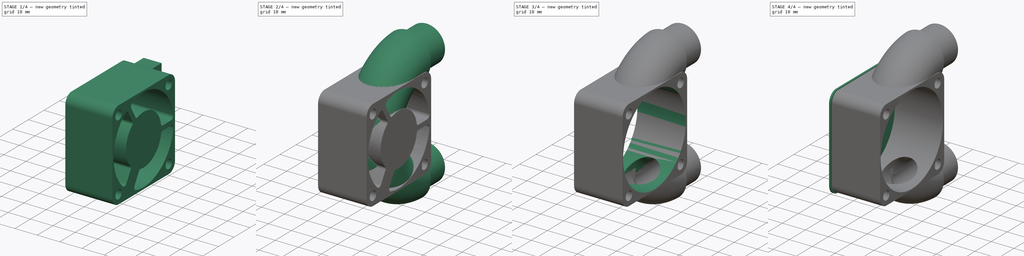
[diagram: build sequence overview — one tinted view per stage of 4, left to right]
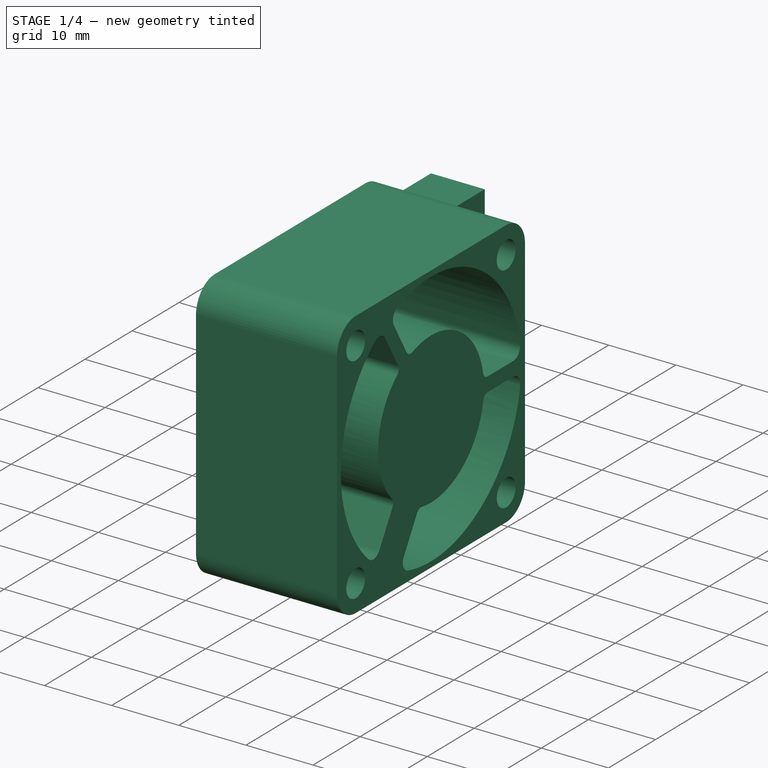
[diagram: stage 1 of 4 — iso view after this stage's code; geometry added in this stage tinted green]
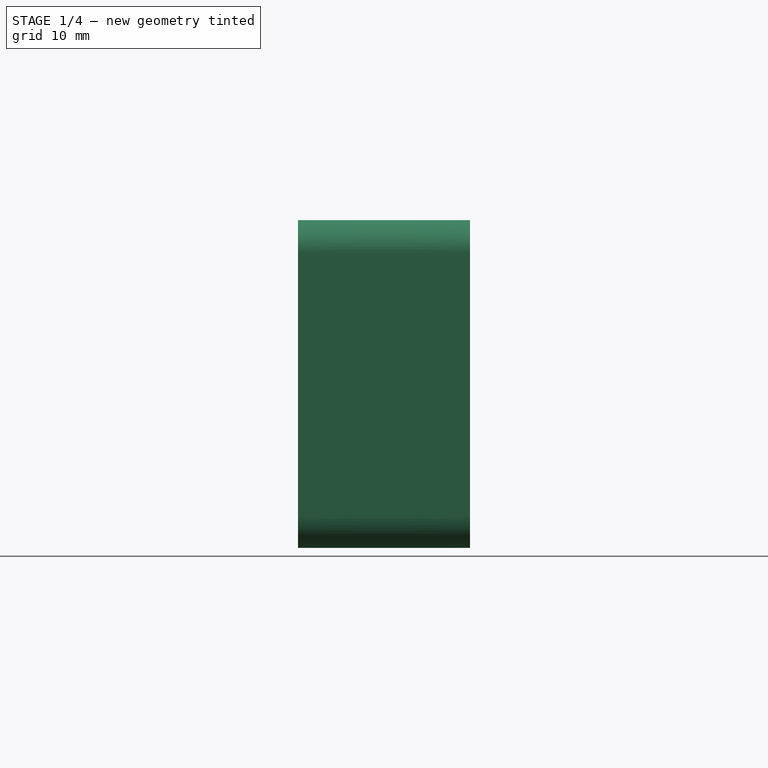
[diagram: stage 1 of 4 — front view after this stage's code; geometry added in this stage tinted green]
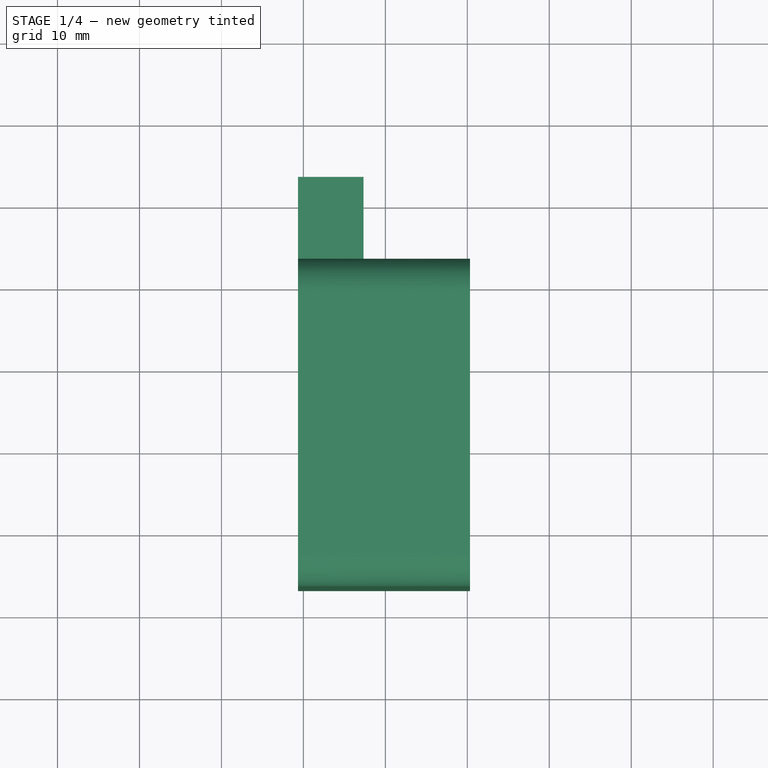
[diagram: stage 1 of 4 — top view after this stage's code; geometry added in this stage tinted green]
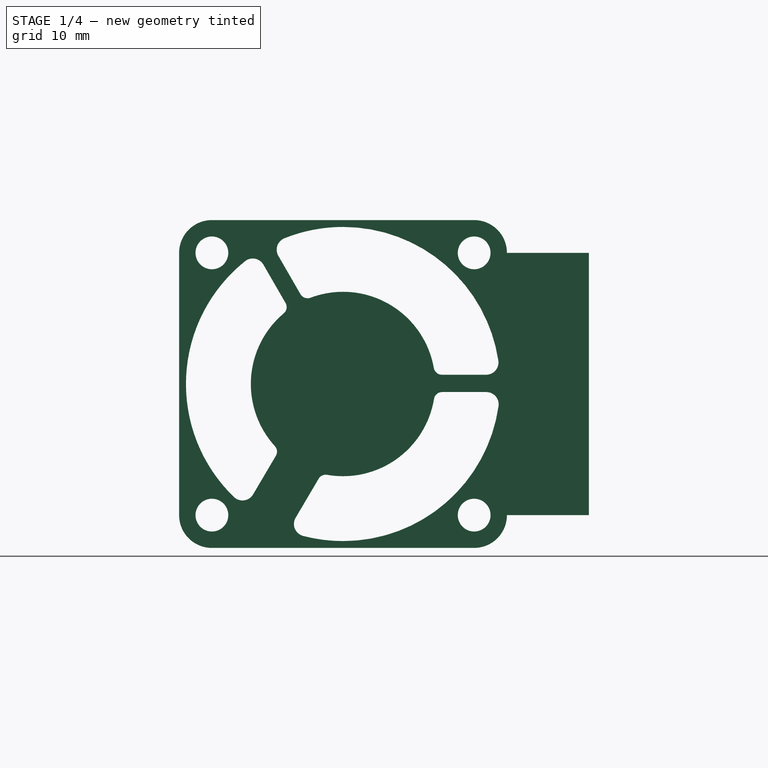
[diagram: stage 1 of 4 — right view after this stage's code; geometry added in this stage tinted green]
FCSTD DOCUMENT  (FreeCAD 0.20R29177 (Git))
Label: AT_006a_ductfan
License: All rights reserved
LicenseURL: http://en.wikipedia.org/wiki/All_rights_reserved
objects: Sketcher::SketchObject×7, PartDesign::Pad×5, PartDesign::Pocket×3, PartDesign::SubShapeBinder×1, PartDesign::AdditivePipe×1, PartDesign::SubtractivePipe×1, PartDesign::Hole×1, PartDesign::Body×1
note: 31 computed .brp shape members not serialized (recipe doc carries the construction recipe); baked Part::Feature solids carry a one-line shape summary decoded from their .brp

FEATURE [PartDesign::SubShapeBinder] Binder
  BindCopyOnChange = 0
  BindMode = 2
  ClaimChildren = false
  Context = -> Body [Binder.]
  Fuse = false
  MakeFace = true
  OffsetFill = false
  OffsetIntersection = false
  OffsetJoinType = 0
  OffsetOpenResult = false
  PartialLoad = false
  Relative = true
  _Version = 2
FEATURE [PartDesign::Pad] Pad
  Direction = (-1600,3.68e-14,-3.553e-13)
  Length = 21
  Length2 = 10
  Profile = -> Binder [Face2]
  Type = 0
FEATURE [PartDesign::Pad] Pad001
  BaseFeature = -> Pad
  Direction = (0,1,3e-16)
  Length = 10
  Length2 = 10
  Profile = -> Pad [Face10]
  Type = 0
FEATURE [PartDesign::Pocket] Pocket
  BaseFeature = -> Pad001
  Direction = (-1,0,-2e-16)
  Length = 13
  Length2 = 5
  Profile = -> Pad001 [Face14]
  Type = 0
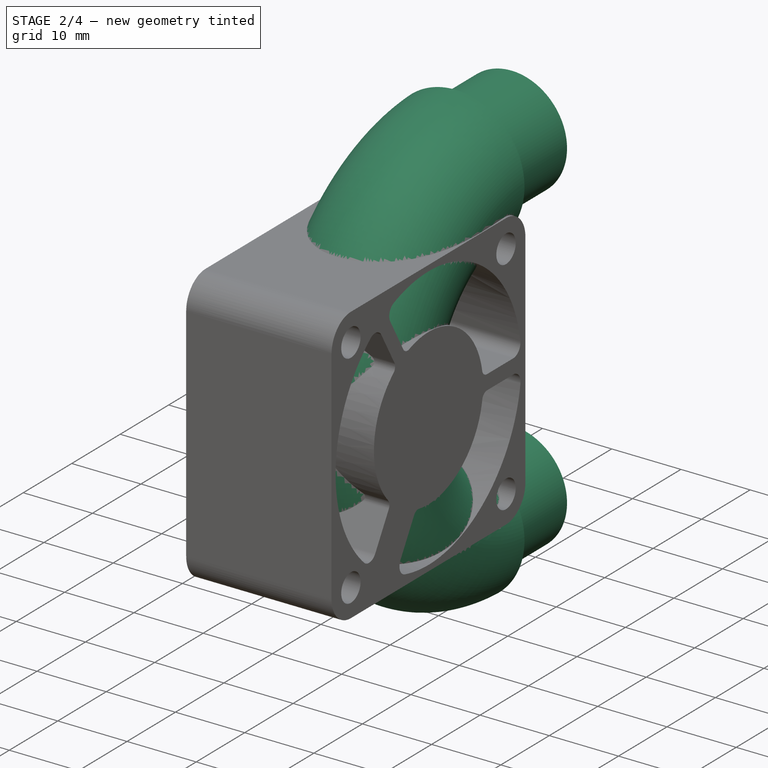
[diagram: stage 2 of 4 — iso view after this stage's code; geometry added in this stage tinted green]
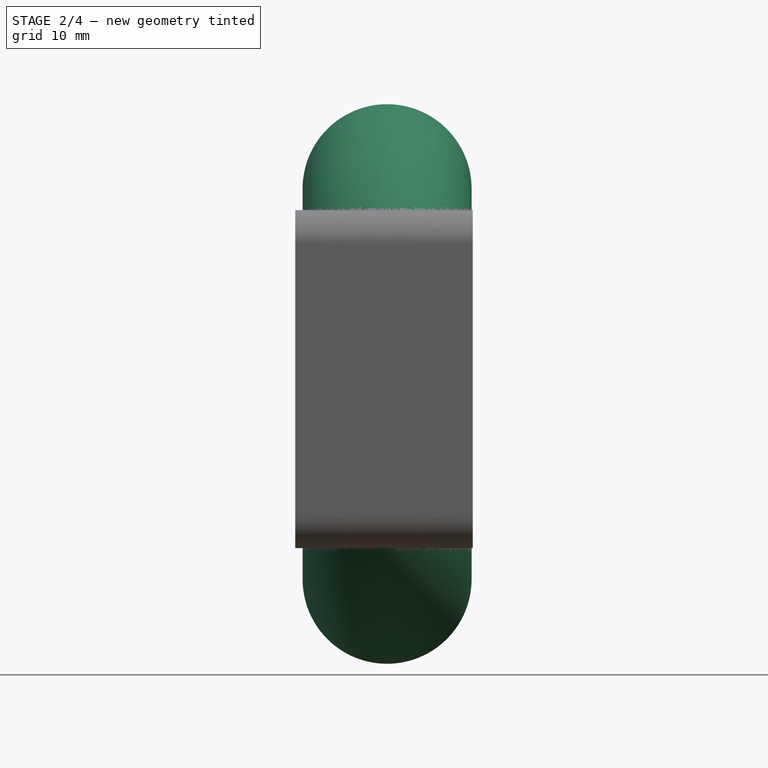
[diagram: stage 2 of 4 — front view after this stage's code; geometry added in this stage tinted green]
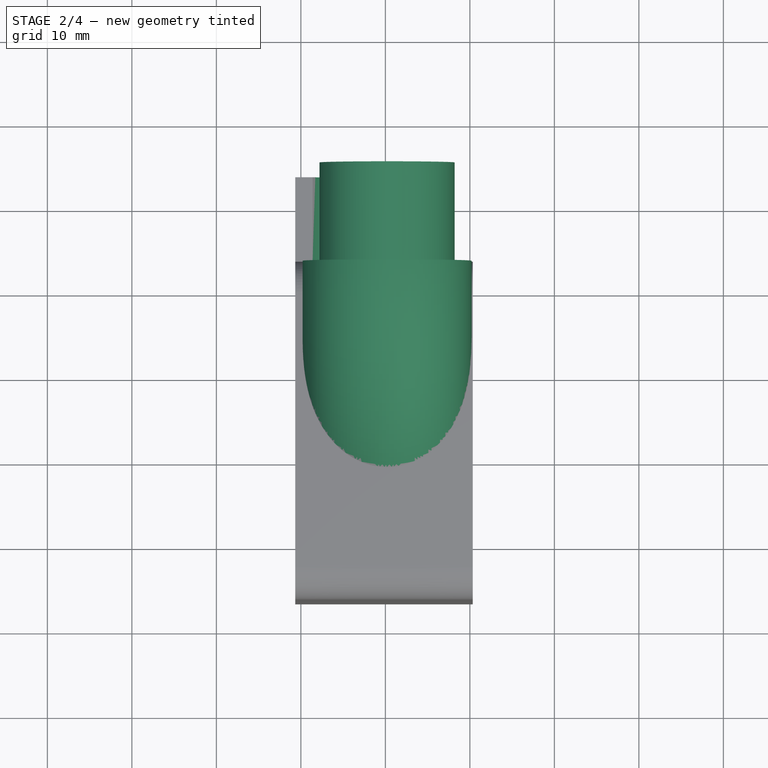
[diagram: stage 2 of 4 — top view after this stage's code; geometry added in this stage tinted green]
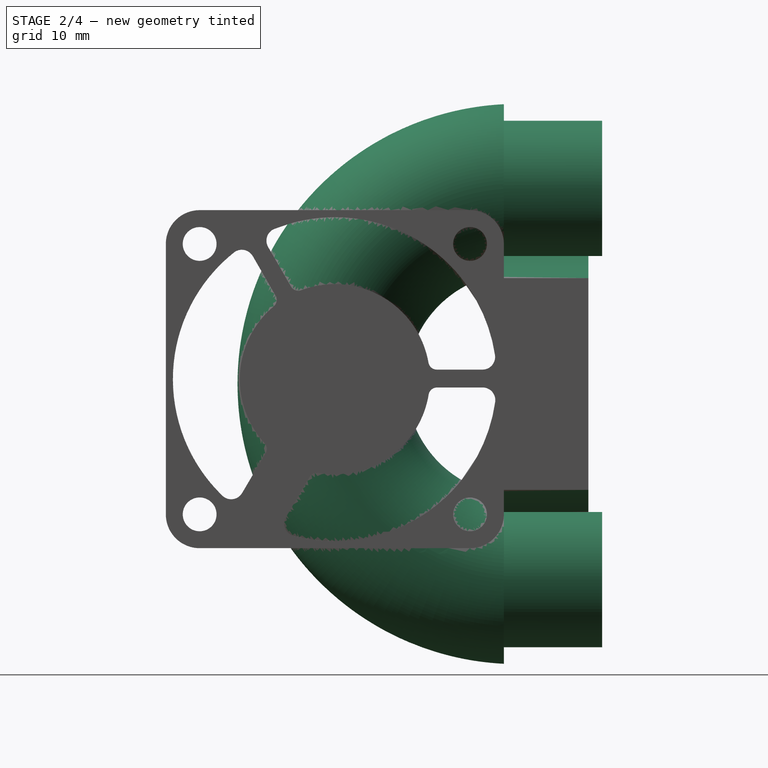
[diagram: stage 2 of 4 — right view after this stage's code; geometry added in this stage tinted green]
FEATURE [Sketcher::SketchObject] Sketch
  ExternalGeometry = -> [Binder]
  FullyConstrained = true
  MapMode = 5
  Placement = pos=(17.3359,-4e-16,3.8e-15) rot=(0.57735,0.57735,0.57735;2.0944rad)
  Support = -> [Pocket]
  sketch-geometry (1):
    g0: ArcOfCircle CenterX=4.8 CenterY=5.95 CenterZ=0 NormalX=0 NormalY=0 NormalZ=1 AngleXU=0 Radius=23.15 StartAngle=1.5708 EndAngle=4.71239
  constraints (3):
    c: Symmetric(g-3,g-3,g0)
    c: Symmetric(g-4,g-4,g0)
    c: Perpendicular(g0,g-3)
FEATURE [PartDesign::AdditivePipe] AdditivePipe
  AuxilleryCurvelinear = true
  AuxillerySpineTangent = false
  BaseFeature = -> Pocket
  Binormal = (0,0,0)
  Mode = 0
  Profile = -> Binder [Face1]
  Spine = -> Sketch
  SpineTangent = false
  Transformation = 0
  Transition = 0
FEATURE [Sketcher::SketchObject] Sketch001
  ExternalGeometry = -> [AdditivePipe]
  FullyConstrained = true
  MapMode = 5
  Placement = pos=(-2.1e-15,4.8,-4.7e-15) rot=(0,0.707107,0.707107;3.14159rad)
  Support = -> [AdditivePipe]
  sketch-geometry (4):
    g0: Circle CenterX=-20.2 CenterY=29.1 CenterZ=0 NormalX=0 NormalY=0 NormalZ=1 AngleXU=0 Radius=8
    g1: Circle CenterX=-20.2 CenterY=-17.2 CenterZ=0 NormalX=0 NormalY=0 NormalZ=1 AngleXU=0 Radius=8
    g2: Circle CenterX=-20.2 CenterY=29.1 CenterZ=0 NormalX=0 NormalY=0 NormalZ=1 AngleXU=0 Radius=6.5
    g3: Circle CenterX=-20.2 CenterY=-17.2 CenterZ=0 NormalX=0 NormalY=0 NormalZ=1 AngleXU=0 Radius=6.5
  constraints (8):
    c: Coincident(g0,g-4)
    c: Coincident(g1,g-3)
    c: Coincident(g2,g0)
    c: Coincident(g3,g1)
    c: Equal(g0,g-4)
    c: Equal(g1,g-3)
    c: Equal(g2,g3)
    c: Diameter(g2) = 13
FEATURE [PartDesign::Pad] Pad002
  BaseFeature = -> AdditivePipe
  Direction = (-4e-16,1,-7e-16)
  Length = 10
  Length2 = 10
  Midplane = true
  Profile = -> Sketch001
  ReferenceAxis = -> Sketch001 [N_Axis]
  Type = 4
FEATURE [Sketcher::SketchObject] Sketch002
  ExternalGeometry = -> [Pad002]
  FullyConstrained = true
  MapMode = 5
  Placement = pos=(3e-16,13.166,3.6e-15) rot=(0,0.707107,0.707107;3.14159rad)
  Support = -> [Pad002]
  sketch-geometry (4):
    g0: Circle CenterX=-20.2 CenterY=29.1 CenterZ=0 NormalX=0 NormalY=0 NormalZ=1 AngleXU=0 Radius=8
    g1: Circle CenterX=-20.2 CenterY=-17.2 CenterZ=0 NormalX=0 NormalY=0 NormalZ=1 AngleXU=0 Radius=8
    g2: Circle CenterX=-20.2 CenterY=29.1 CenterZ=0 NormalX=0 NormalY=0 NormalZ=1 AngleXU=0 Radius=11
    g3: Circle CenterX=-20.2 CenterY=-17.2 CenterZ=0 NormalX=0 NormalY=0 NormalZ=1 AngleXU=0 Radius=11
  constraints (8):
    c: Coincident(g0,g-3)
    c: Coincident(g1,g-4)
    c: Coincident(g2,g0)
    c: Coincident(g3,g1)
    c: Equal(g2,g3)
    c: Equal(g0,g1)
    c: Diameter(g1) = 16
    c: Diameter(g3) = 22
FEATURE [PartDesign::Pocket] Pocket001
  BaseFeature = -> Pad002
  Direction = (0,-1,-2e-16)
  Length = 10
  Length2 = 5
  Profile = -> Sketch002
  ReferenceAxis = -> Sketch002 [N_Axis]
  Type = 0
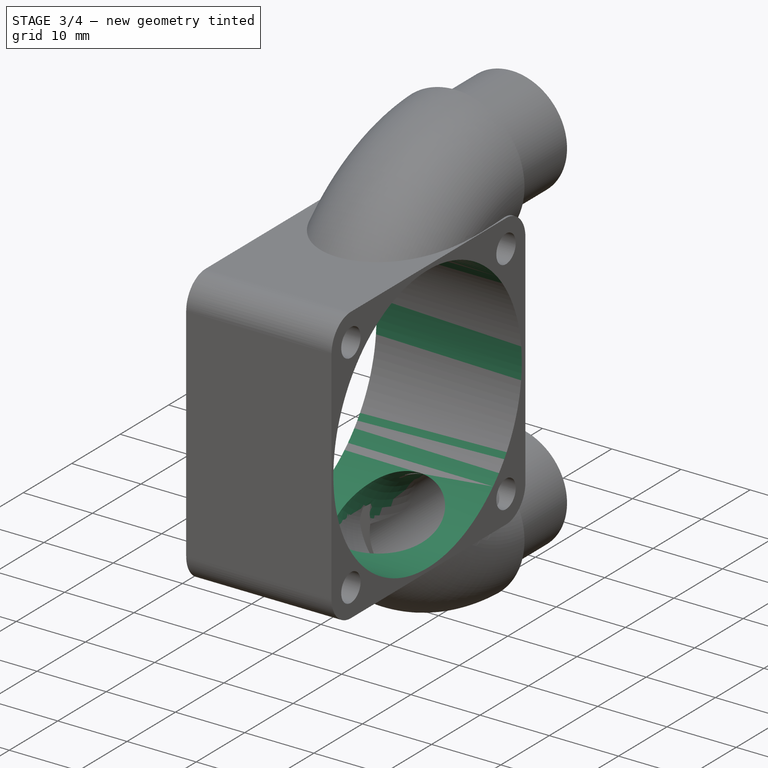
[diagram: stage 3 of 4 — iso view after this stage's code; geometry added in this stage tinted green]
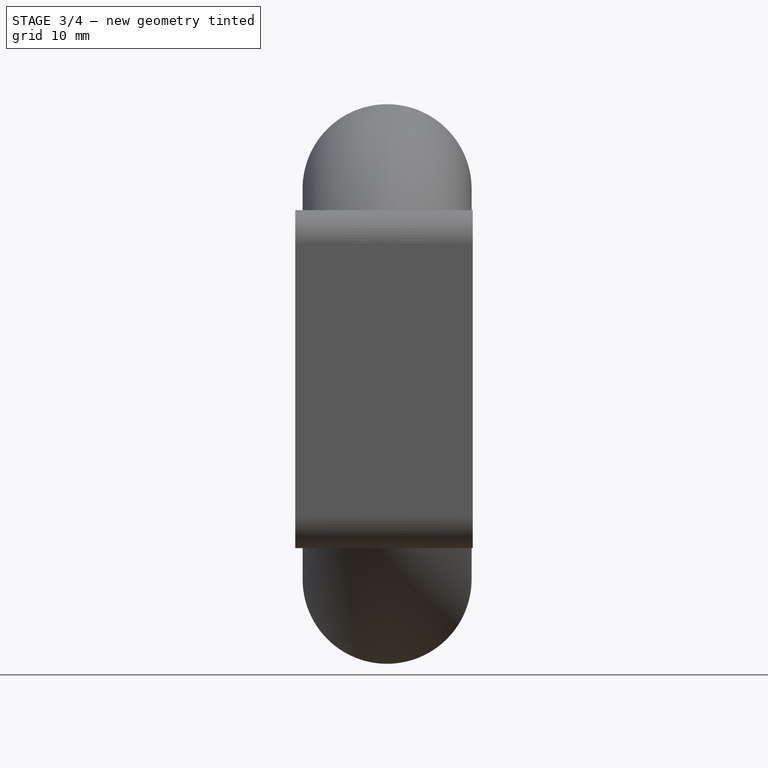
[diagram: stage 3 of 4 — front view after this stage's code; geometry added in this stage tinted green]
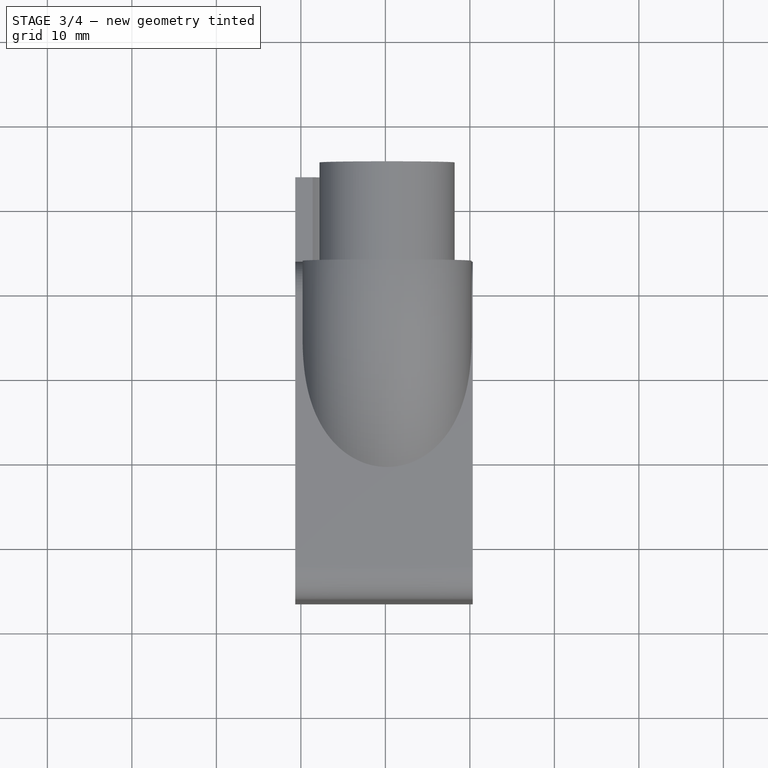
[diagram: stage 3 of 4 — top view after this stage's code; geometry added in this stage tinted green]
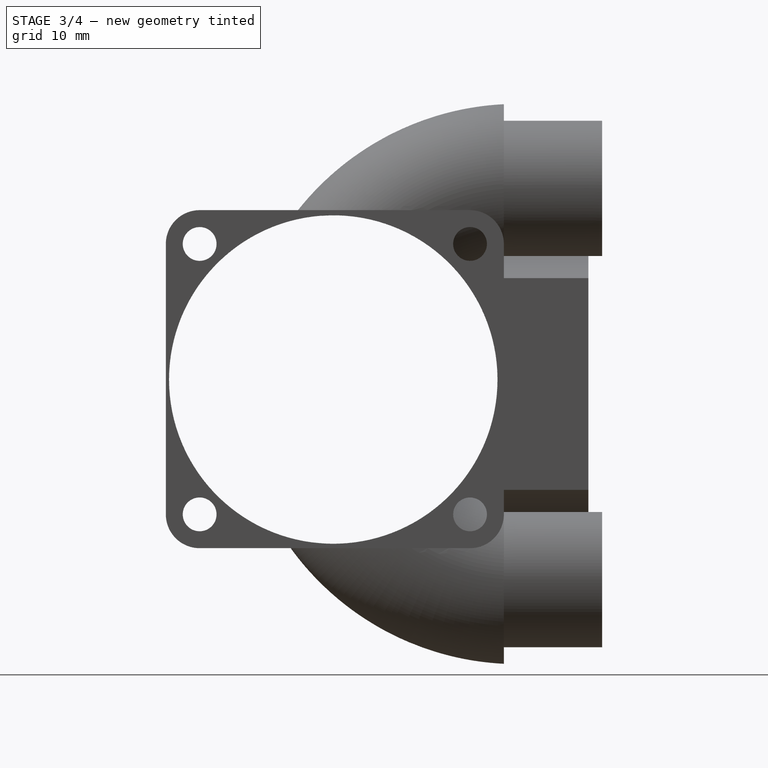
[diagram: stage 3 of 4 — right view after this stage's code; geometry added in this stage tinted green]
FEATURE [Sketcher::SketchObject] Sketch003
  ExternalGeometry = -> [Pocket001]
  FullyConstrained = true
  MapMode = 5
  Placement = pos=(0,3.16599,7e-16) rot=(0,0.707107,0.707107;3.14159rad)
  Support = -> [Pocket001]
  sketch-geometry (1):
    g0: Circle CenterX=-20.2 CenterY=-17.2 CenterZ=0 NormalX=0 NormalY=0 NormalZ=1 AngleXU=0 Radius=6.5
  constraints (2):
    c: Coincident(g0,g-3)
    c: Diameter(g0) = 13
FEATURE [Sketcher::SketchObject] Sketch004
  ExternalGeometry = -> [Pocket001]
  FullyConstrained = false
  MapMode = 5
  Placement = pos=(9.33588,-2e-16,2.1e-15) rot=(-0.57735,0.57735,0.57735;4.18879rad)
  Support = -> [Pocket001]
  sketch-geometry (1):
    g0: Circle CenterX=17.0211 CenterY=6.48015 CenterZ=0 NormalX=0 NormalY=0 NormalZ=1 AngleXU=0 Radius=19.4361
FEATURE [PartDesign::Pocket] Pocket002
  BaseFeature = -> Pocket001
  Direction = (1,1e-16,1e-16)
  Length = 5
  Length2 = 5
  Profile = -> Sketch004
  ReferenceAxis = -> Sketch004 [N_Axis]
  Type = 1
FEATURE [PartDesign::SubtractivePipe] SubtractivePipe
  AuxilleryCurvelinear = true
  AuxillerySpineTangent = false
  BaseFeature = -> Pocket002
  Binormal = (0,0,0)
  Mode = 0
  Profile = -> Sketch003
  Spine = -> Sketch
  SpineTangent = false
  Transformation = 0
  Transition = 0
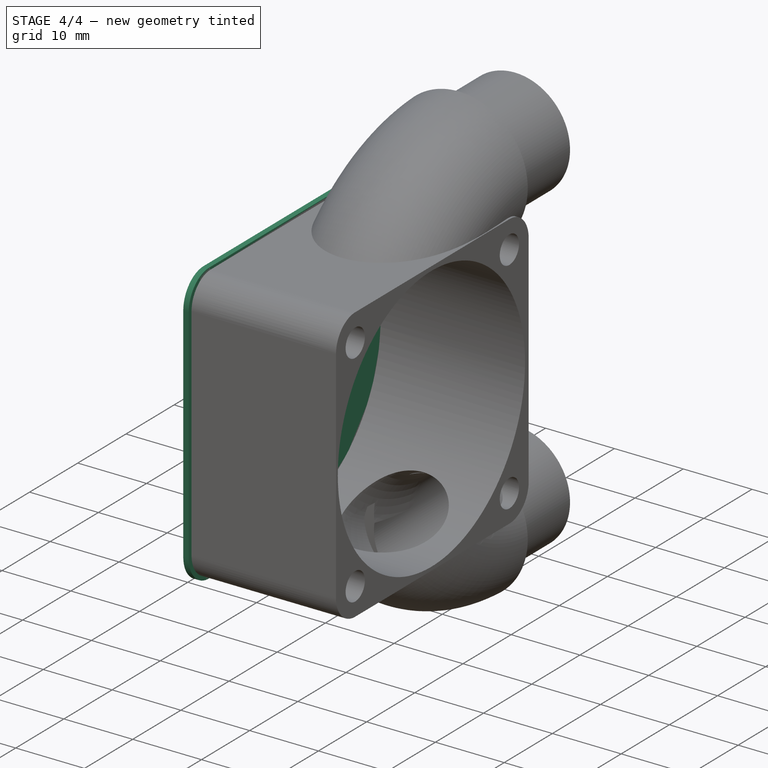
[diagram: stage 4 of 4 — iso view after this stage's code; geometry added in this stage tinted green]
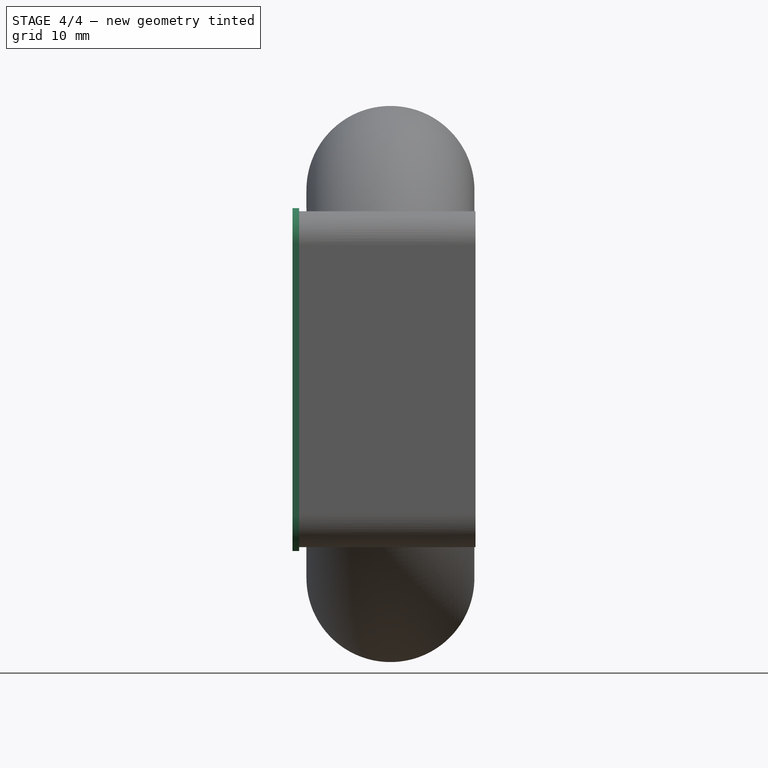
[diagram: stage 4 of 4 — front view after this stage's code; geometry added in this stage tinted green]
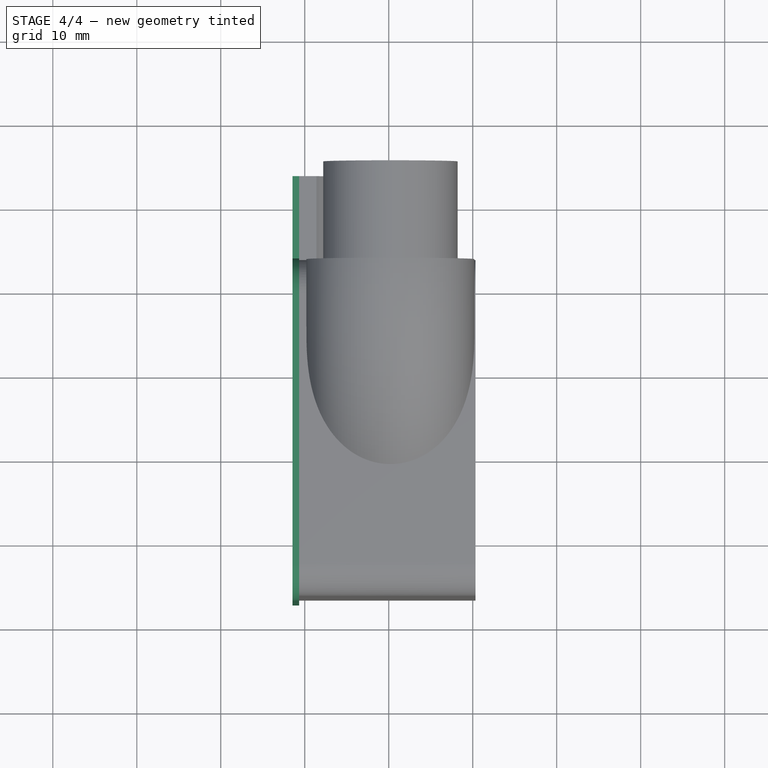
[diagram: stage 4 of 4 — top view after this stage's code; geometry added in this stage tinted green]
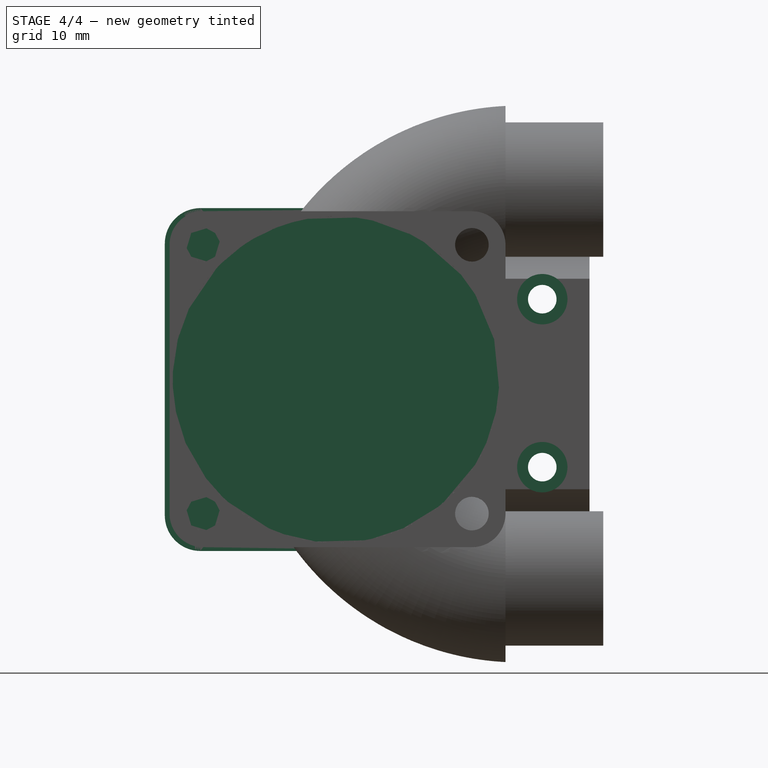
[diagram: stage 4 of 4 — right view after this stage's code; geometry added in this stage tinted green]
FEATURE [Sketcher::SketchObject] Sketch005
  ExternalGeometry = -> [SubtractivePipe]
  FullyConstrained = false
  MapMode = 5
  Placement = pos=(9.33588,-2e-16,2.1e-15) rot=(-0.57735,0.57735,0.57735;4.18879rad)
  Support = -> [SubtractivePipe]
  sketch-geometry (10):
    g0: ArcOfCircle CenterX=0.878593 CenterY=22.6531 CenterZ=0 NormalX=0 NormalY=0 NormalZ=1 AngleXU=0 Radius=4.23767 StartAngle=1.5708 EndAngle=3.14159
    g1: LineSegment StartX=0.878593 StartY=26.8908 StartZ=0 EndX=33.1637 EndY=26.8908 EndZ=0
    g2: ArcOfCircle CenterX=33.1637 CenterY=22.6531 CenterZ=0 NormalX=0 NormalY=0 NormalZ=1 AngleXU=0 Radius=4.23767 StartAngle=4e-16 EndAngle=1.5708
    g3: LineSegment StartX=37.4014 StartY=22.6531 StartZ=0 EndX=37.4014 EndY=-9.69282 EndZ=0
    g4: ArcOfCircle CenterX=33.1637 CenterY=-9.69282 CenterZ=0 NormalX=0 NormalY=0 NormalZ=1 AngleXU=0 Radius=4.23767 StartAngle=4.71239 EndAngle=6.28319
    g5: LineSegment StartX=33.1637 StartY=-13.9305 StartZ=0 EndX=0.878593 EndY=-13.9305 EndZ=0
    g6: ArcOfCircle CenterX=0.878593 CenterY=-9.69282 CenterZ=0 NormalX=0 NormalY=0 NormalZ=1 AngleXU=0 Radius=4.23767 StartAngle=3.14159 EndAngle=4.71239
    g7: LineSegment StartX=-3.35908 StartY=-9.69282 StartZ=0 EndX=-3.35908 EndY=22.6531 EndZ=0
    g8: GeomPoint X=-3.35908 Y=26.8908 Z=0
    g9: GeomPoint X=37.4014 Y=-13.9305 Z=0
  constraints (20):
    c: Tangent(g0,g1) = 1.5708
    c: Tangent(g1,g2) = 1.5708
    c: Tangent(g2,g3) = 1.5708
    c: Tangent(g3,g4) = 1.5708
    c: Tangent(g4,g5) = 1.5708
    c: Tangent(g5,g6) = 1.5708
    c: Tangent(g6,g7) = 1.5708
    c: Tangent(g7,g0) = 1.5708
    c: Horizontal(g1)
    c: Horizontal(g5)
    c: Vertical(g3)
    c: Vertical(g7)
    c: Equal(g0,g2)
    c: Equal(g2,g4)
    c: Equal(g4,g6)
    c: PointOnObject(g8,g1)
    c: PointOnObject(g8,g7)
    c: PointOnObject(g9,g3)
    c: PointOnObject(g9,g5)
    c: Symmetric(g4,g0,g-3)
FEATURE [PartDesign::Pad] Pad003
  BaseFeature = -> SubtractivePipe
  Direction = (-1,-1e-16,-1e-16)
  Length = 0.8
  Length2 = 10
  Profile = -> Sketch005
  ReferenceAxis = -> Sketch005 [N_Axis]
  Type = 0
FEATURE [Sketcher::SketchObject] Sketch006
  ExternalGeometry = -> [Binder]
  FullyConstrained = false
  MapMode = 5
  Placement = pos=(17.3359,-4e-16,3.8e-15) rot=(0.57735,0.57735,0.57735;2.0944rad)
  Support = -> [Pad003]
  sketch-geometry (2):
    g0: Circle CenterX=7.54553 CenterY=16.0488 CenterZ=0 NormalX=0 NormalY=0 NormalZ=1 AngleXU=0 Radius=1.26897
    g1: Circle CenterX=7.54553 CenterY=-3.95123 CenterZ=0 NormalX=0 NormalY=0 NormalZ=1 AngleXU=0 Radius=1.0307
  constraints (2):
    c: Coincident(g0,g-5)
    c: Coincident(g1,g-4)
FEATURE [PartDesign::Hole] Hole
  BaseFeature = -> Pad003
  CustomThreadClearance = 0
  Depth = 25
  DepthType = 0
  Diameter = 3.4
  DrillForDepth = false
  DrillPoint = 1
  DrillPointAngle = 118
  HoleCutCountersinkAngle = 90
  HoleCutCustomValues = false
  HoleCutDepth = 1.7
  HoleCutDiameter = 6
  HoleCutType = 9
  ModelThread = false
  Profile = -> Sketch006
  Tapered = false
  TaperedAngle = 90
  ThreadClass = 0
  ThreadDepth = 25
  ThreadDepthType = 0
  ThreadDirection = 0
  ThreadFit = 0
  ThreadSize = 9
  ThreadType = 1
  Threaded = false
  UseCustomThreadClearance = false
FEATURE [PartDesign::Pad] Pad004
  BaseFeature = -> Hole
  Direction = (-1,0,-2e-16)
  Length = 0.8
  Length2 = 10
  Profile = -> Hole [Face210]
  Type = 0
FEATURE [PartDesign::Body] Body
  Group = -> [Binder,Pad,Pad001,Pocket,Sketch,AdditivePipe,Sketch001,Pad002,Sketch002,Pocket001,Sketch003,Sketch004,Pocket002,SubtractivePipe,Sketch005,Pad003,Sketch006,Hole,Pad004]
  Origin = -> Origin
  Tip = -> Pad004
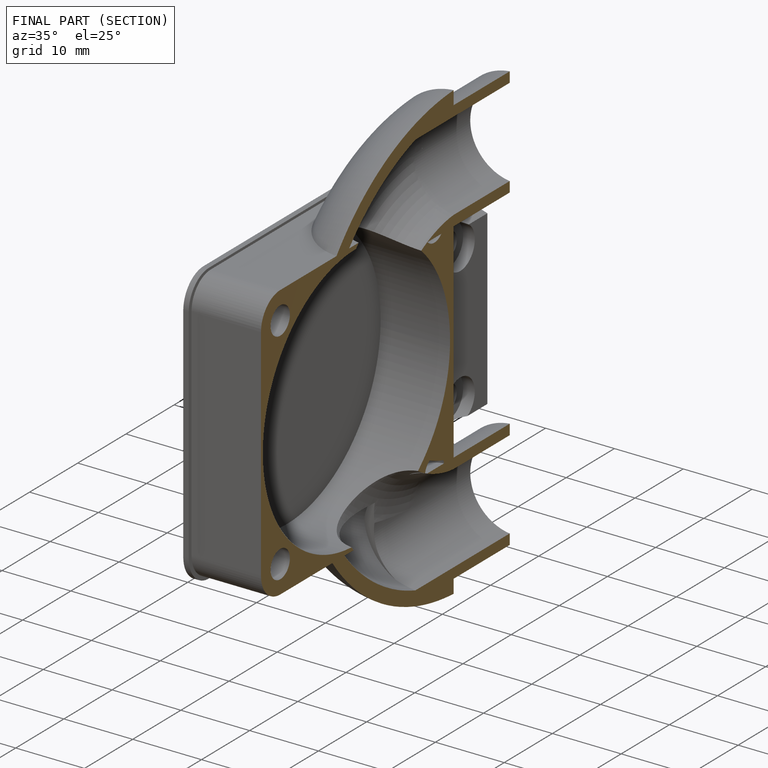
[diagram: finished part — half-section view (interior)]
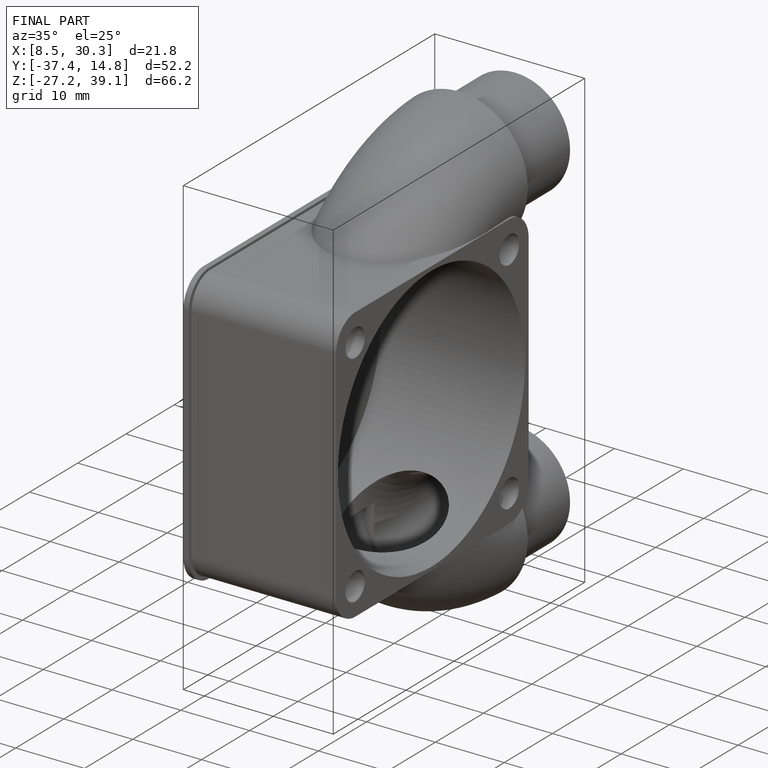
[diagram: finished part — iso view with bounding-box wireframe]
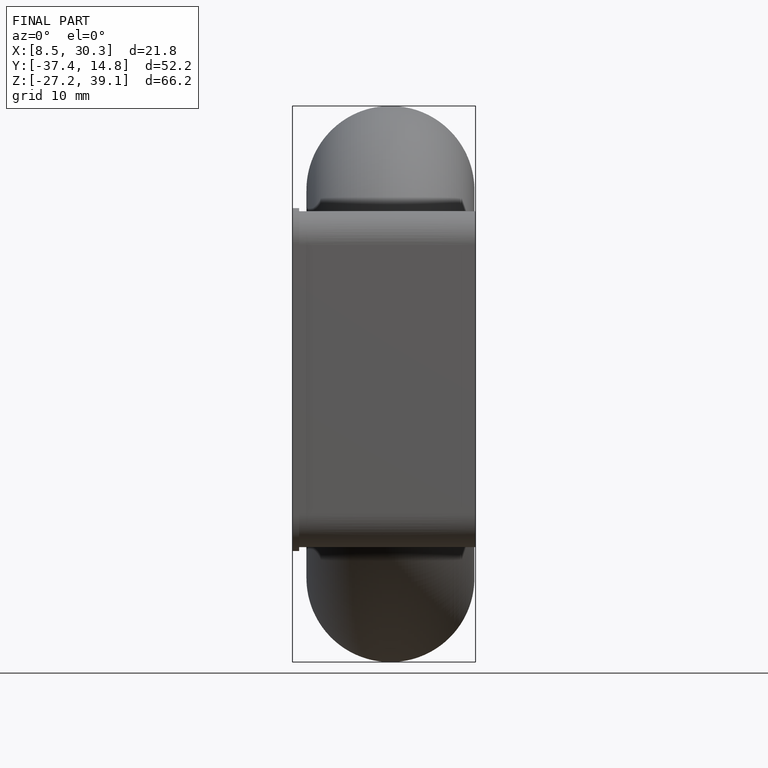
[diagram: finished part — front view with bounding-box wireframe]
